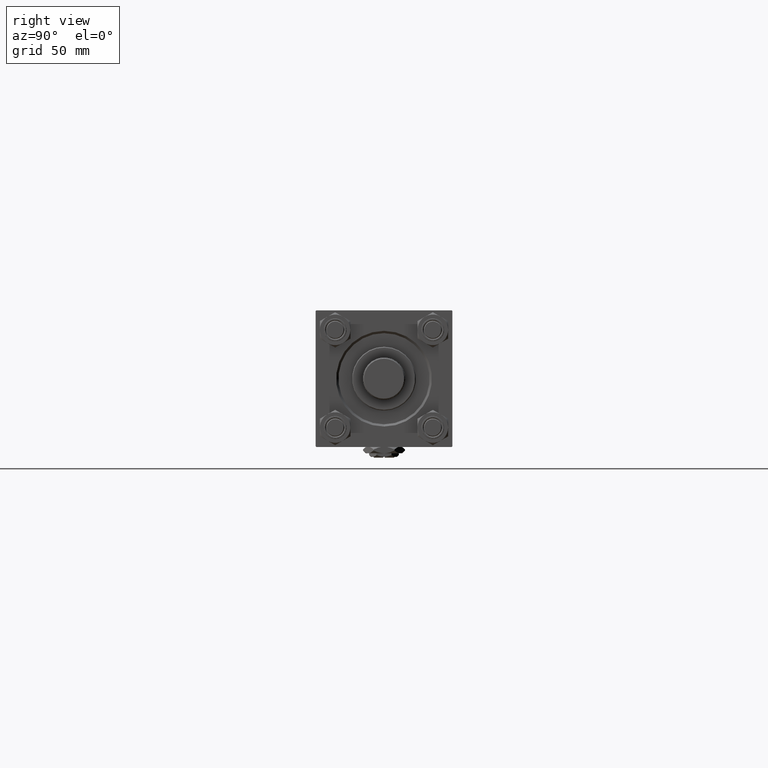
[diagram: clean part render]
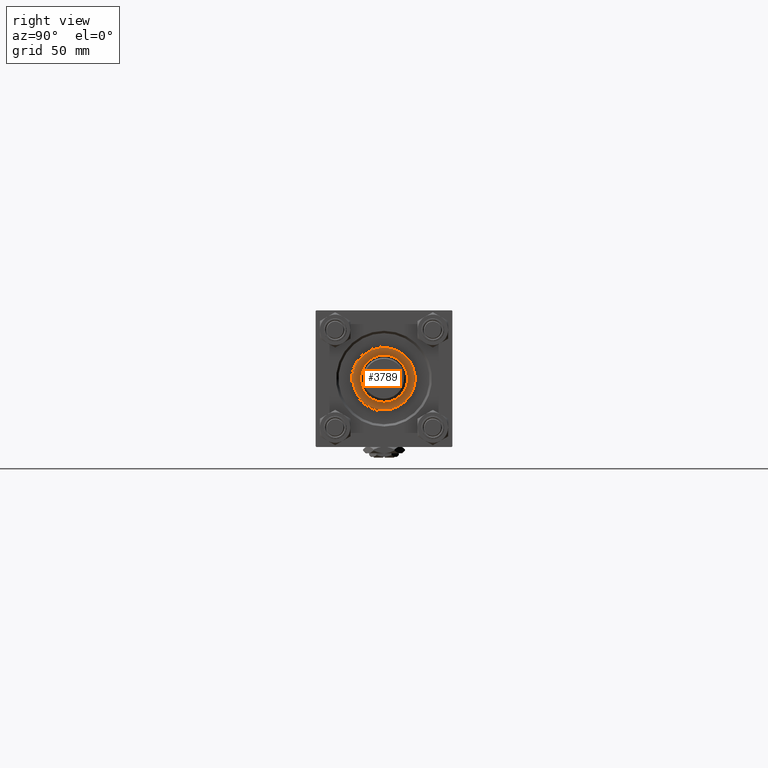
[diagram: same view with one face highlighted and labeled with its STEP entity id]
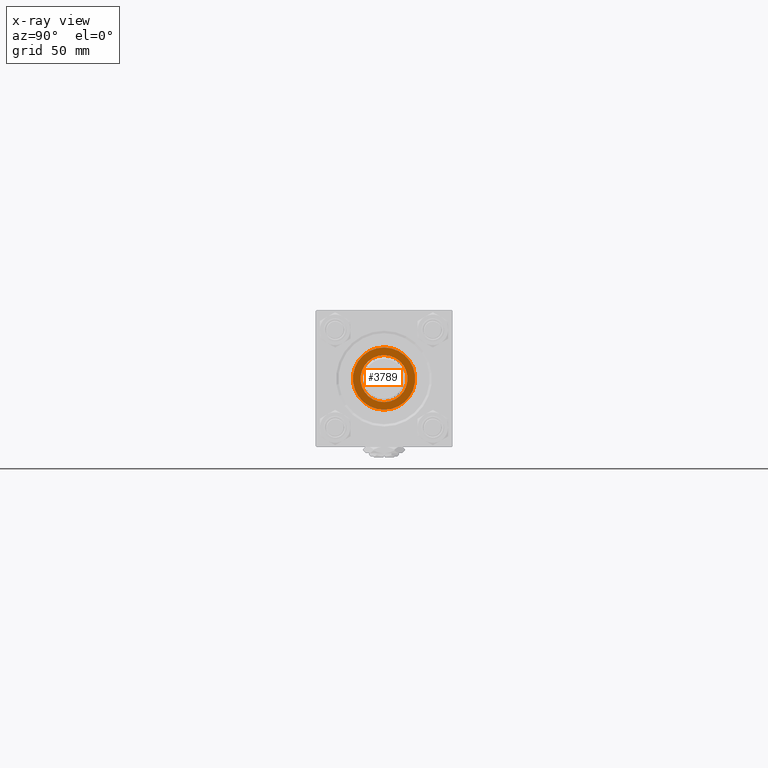
[diagram: x-ray of the same camera — body ghosted, the highlighted face saturated]
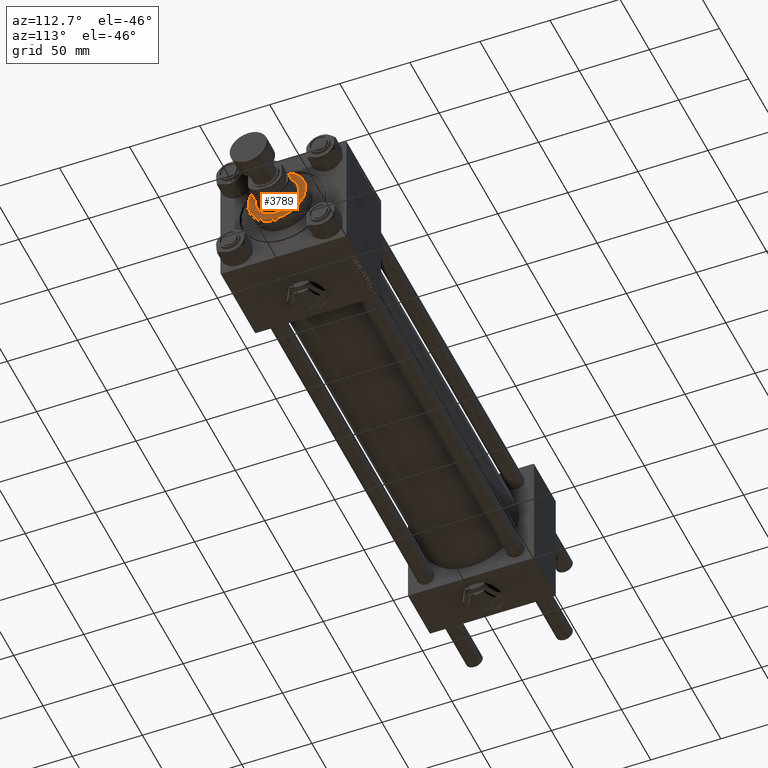
[diagram: same view with one face highlighted and labeled with its STEP entity id]
A machine part, right view. The second image highlights one B-rep face of the part: STEP entity #3789.
The next image is the same camera in x-ray: the body ghosted, the highlighted face saturated — about 0% of this face is hidden behind the body in this view.
A second angle (auxiliary view) of the same face is appended — the face is thin or edge-on in the first view.
In plain terms, the highlighted planar face has unit normal (1, 0, -0).
Its self-contained STEP definition (entity closure, byte-faithful):
#2933 = DIRECTION ( 'NONE',  ( 0.000000000000000000, 0.000000000000000000, 1.000000000000000000 ) ) ;
#3015 = CARTESIAN_POINT ( 'NONE',  ( 0.000000000000000000, 0.000000000000000000, 39.69999999999999574 ) ) ;
#3299 = FACE_OUTER_BOUND ( 'NONE', #43084, .T. ) ;
#3789 = ADVANCED_FACE ( 'NONE', ( #27885, #3299 ), #48249, .T. ) ;
#4239 = EDGE_CURVE ( 'NONE', #9542, #19187, #10321, .T. ) ;
#7447 = CARTESIAN_POINT ( 'NONE',  ( 0.000000000000000000, 0.000000000000000000, 39.69999999999999574 ) ) ;
#8037 = EDGE_CURVE ( 'NONE', #12461, #51301, #11267, .T. ) ;
#8058 = ORIENTED_EDGE ( 'NONE', *, *, #36779, .F. ) ;
#8622 = AXIS2_PLACEMENT_3D ( 'NONE', #14009, #37020, #13742 ) ;
#9542 = VERTEX_POINT ( 'NONE', #46883 ) ;
#10321 = CIRCLE ( 'NONE', #8622, 15.50000000000000000 ) ;
#11267 = CIRCLE ( 'NONE', #15509, 20.50000000000000355 ) ;
#12027 = DIRECTION ( 'NONE',  ( 0.000000000000000000, 0.000000000000000000, 1.000000000000000000 ) ) ;
#12461 = VERTEX_POINT ( 'NONE', #47093 ) ;
#12953 = CARTESIAN_POINT ( 'NONE',  ( -15.50000000000000000, 1.898202538678397557E-15, 39.69999999999999574 ) ) ;
#13742 = DIRECTION ( 'NONE',  ( 1.000000000000000000, 0.000000000000000000, 0.000000000000000000 ) ) ;
#14009 = CARTESIAN_POINT ( 'NONE',  ( 0.000000000000000000, 0.000000000000000000, 39.69999999999999574 ) ) ;
#15491 = CARTESIAN_POINT ( 'NONE',  ( 0.000000000000000000, 0.000000000000000000, 39.69999999999999574 ) ) ;
#15509 = AXIS2_PLACEMENT_3D ( 'NONE', #19200, #38502, #34789 ) ;
#15564 = CIRCLE ( 'NONE', #20646, 15.50000000000000000 ) ;
#17764 = ORIENTED_EDGE ( 'NONE', *, *, #43732, .T. ) ;
#19187 = VERTEX_POINT ( 'NONE', #12953 ) ;
#19200 = CARTESIAN_POINT ( 'NONE',  ( 0.000000000000000000, 0.000000000000000000, 39.69999999999999574 ) ) ;
#20646 = AXIS2_PLACEMENT_3D ( 'NONE', #7447, #2933, #43403 ) ;
#23344 = ORIENTED_EDGE ( 'NONE', *, *, #8037, .T. ) ;
#26410 = CARTESIAN_POINT ( 'NONE',  ( 20.50000000000000355, 2.541142108230758269E-15, 39.69999999999999574 ) ) ;
#27526 = CIRCLE ( 'NONE', #32581, 20.50000000000000355 ) ;
#27885 = FACE_BOUND ( 'NONE', #51432, .T. ) ;
#29360 = ORIENTED_EDGE ( 'NONE', *, *, #4239, .F. ) ;
#30643 = AXIS2_PLACEMENT_3D ( 'NONE', #15491, #12027, #40320 ) ;
#32581 = AXIS2_PLACEMENT_3D ( 'NONE', #3015, #34511, #46413 ) ;
#34511 = DIRECTION ( 'NONE',  ( 0.000000000000000000, 0.000000000000000000, 1.000000000000000000 ) ) ;
#34789 = DIRECTION ( 'NONE',  ( 1.000000000000000000, 0.000000000000000000, 0.000000000000000000 ) ) ;
#36779 = EDGE_CURVE ( 'NONE', #19187, #9542, #15564, .T. ) ;
#37020 = DIRECTION ( 'NONE',  ( 0.000000000000000000, 0.000000000000000000, 1.000000000000000000 ) ) ;
#38502 = DIRECTION ( 'NONE',  ( 0.000000000000000000, 0.000000000000000000, 1.000000000000000000 ) ) ;
#40320 = DIRECTION ( 'NONE',  ( 1.000000000000000000, 0.000000000000000000, -0.000000000000000000 ) ) ;
#43084 = EDGE_LOOP ( 'NONE', ( #23344, #17764 ) ) ;
#43403 = DIRECTION ( 'NONE',  ( 1.000000000000000000, 0.000000000000000000, 0.000000000000000000 ) ) ;
#43732 = EDGE_CURVE ( 'NONE', #51301, #12461, #27526, .T. ) ;
#46413 = DIRECTION ( 'NONE',  ( 1.000000000000000000, 0.000000000000000000, 0.000000000000000000 ) ) ;
#46883 = CARTESIAN_POINT ( 'NONE',  ( 15.50000000000000000, 0.000000000000000000, 39.69999999999999574 ) ) ;
#47093 = CARTESIAN_POINT ( 'NONE',  ( -20.50000000000000355, 0.000000000000000000, 39.69999999999999574 ) ) ;
#48249 = PLANE ( 'NONE',  #30643 ) ;
#51301 = VERTEX_POINT ( 'NONE', #26410 ) ;
#51432 = EDGE_LOOP ( 'NONE', ( #29360, #8058 ) ) ;